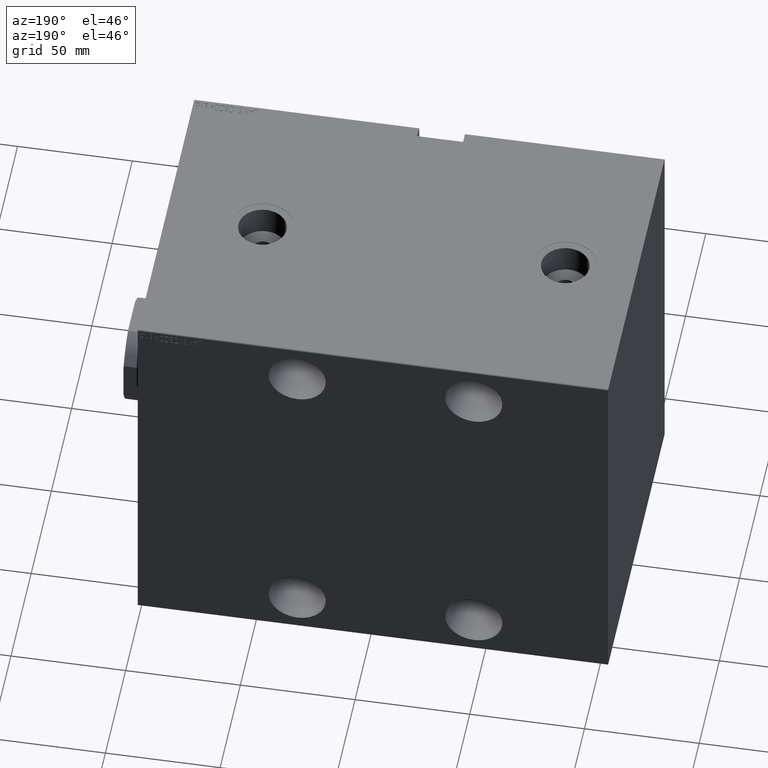
[diagram: clean part render]
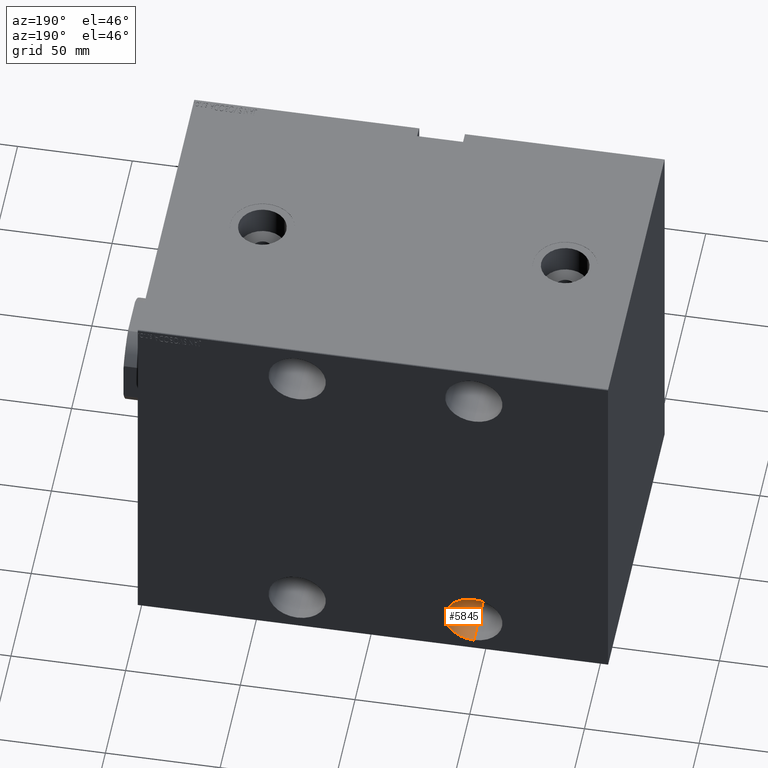
[diagram: same view with one face highlighted and labeled with its STEP entity id]
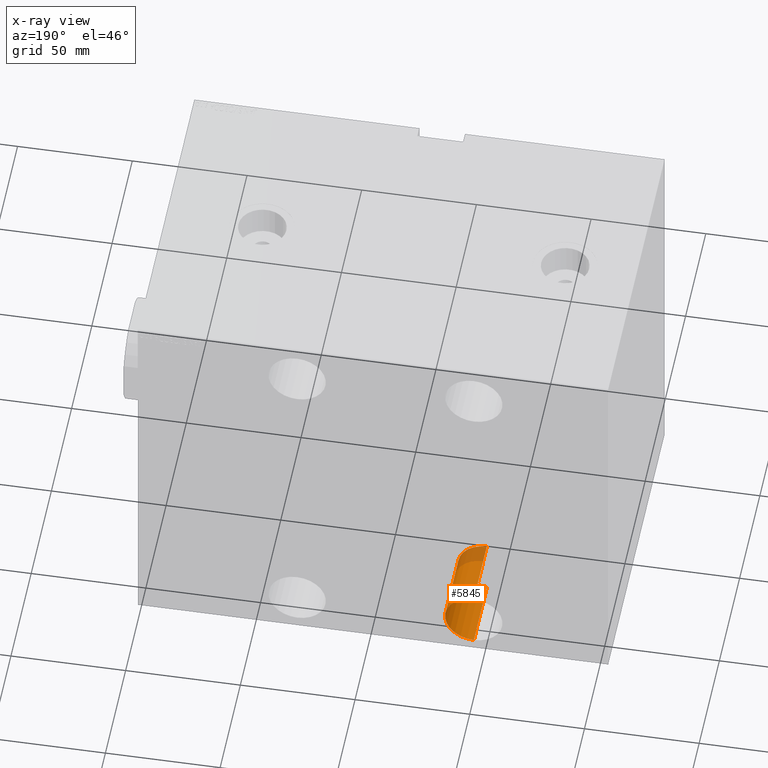
[diagram: x-ray of the same camera — body ghosted, the highlighted face saturated]
A machine part, auxiliary view. The second image highlights one B-rep face of the part: STEP entity #5845.
The next image is the same camera in x-ray: the body ghosted, the highlighted face saturated — about 20% of this face is hidden behind the body in this view.
In plain terms, the highlighted cylindrical surface (edge-blend (fillet) strip) has radius 12.5 mm, axis along (0, 1, -0).
Its self-contained STEP definition (entity closure, byte-faithful):
#503 = EDGE_CURVE ( 'NONE', #38958, #21281, #22963, .T. ) ;
#773 = CARTESIAN_POINT ( 'NONE',  ( 146.5000000000000284, -69.99999999999998579, -67.50000000000005684 ) ) ;
#1232 = CYLINDRICAL_SURFACE ( 'NONE', #12297, 12.50000000000001066 ) ;
#3494 = AXIS2_PLACEMENT_3D ( 'NONE', #6202, #27288, #33370 ) ;
#4210 = CIRCLE ( 'NONE', #3494, 12.50000000000001066 ) ;
#4815 = CARTESIAN_POINT ( 'NONE',  ( 146.5000000000000284, -37.99999999999999289, -67.50000000000005684 ) ) ;
#5845 = ADVANCED_FACE ( 'NONE', ( #11550 ), #1232, .F. ) ;
#6202 = CARTESIAN_POINT ( 'NONE',  ( 146.5000000000000284, -37.99999999999999289, -67.50000000000005684 ) ) ;
#8167 = DIRECTION ( 'NONE',  ( 0.000000000000000000, -1.000000000000000000, 0.000000000000000000 ) ) ;
#8294 = VECTOR ( 'NONE', #33725, 1000.000000000000000 ) ;
#9779 = CARTESIAN_POINT ( 'NONE',  ( 146.5000000000000284, -69.99999999999998579, -55.00000000000004974 ) ) ;
#10836 = CARTESIAN_POINT ( 'NONE',  ( 146.5000000000000284, -37.99999999999999289, -55.00000000000004974 ) ) ;
#11064 = EDGE_CURVE ( 'NONE', #39208, #38958, #42042, .T. ) ;
#11550 = FACE_OUTER_BOUND ( 'NONE', #30825, .T. ) ;
#12297 = AXIS2_PLACEMENT_3D ( 'NONE', #4815, #22314, #31766 ) ;
#13501 = CARTESIAN_POINT ( 'NONE',  ( 146.5000000000000284, -37.99999999999999289, -80.00000000000007105 ) ) ;
#13626 = AXIS2_PLACEMENT_3D ( 'NONE', #773, #8167, #21855 ) ;
#15725 = CARTESIAN_POINT ( 'NONE',  ( 146.5000000000000284, -69.99999999999998579, -80.00000000000007105 ) ) ;
#16128 = ORIENTED_EDGE ( 'NONE', *, *, #503, .T. ) ;
#18320 = CARTESIAN_POINT ( 'NONE',  ( 146.5000000000000284, -37.99999999999999289, -80.00000000000007105 ) ) ;
#20332 = VERTEX_POINT ( 'NONE', #18320 ) ;
#20842 = EDGE_CURVE ( 'NONE', #20332, #21281, #33937, .T. ) ;
#20935 = CARTESIAN_POINT ( 'NONE',  ( 146.5000000000000284, -37.99999999999999289, -55.00000000000005684 ) ) ;
#21281 = VERTEX_POINT ( 'NONE', #15725 ) ;
#21855 = DIRECTION ( 'NONE',  ( 0.000000000000000000, 0.000000000000000000, -1.000000000000000000 ) ) ;
#22314 = DIRECTION ( 'NONE',  ( -0.000000000000000000, -1.000000000000000000, -0.000000000000000000 ) ) ;
#22963 = CIRCLE ( 'NONE', #13626, 12.50000000000001066 ) ;
#24538 = DIRECTION ( 'NONE',  ( -0.000000000000000000, -1.000000000000000000, -0.000000000000000000 ) ) ;
#27288 = DIRECTION ( 'NONE',  ( 0.000000000000000000, -1.000000000000000000, 0.000000000000000000 ) ) ;
#29882 = ORIENTED_EDGE ( 'NONE', *, *, #20842, .F. ) ;
#30825 = EDGE_LOOP ( 'NONE', ( #38554, #40954, #16128, #29882 ) ) ;
#31766 = DIRECTION ( 'NONE',  ( 0.000000000000000000, 0.000000000000000000, -1.000000000000000000 ) ) ;
#33370 = DIRECTION ( 'NONE',  ( 0.000000000000000000, 0.000000000000000000, -1.000000000000000000 ) ) ;
#33725 = DIRECTION ( 'NONE',  ( -0.000000000000000000, -1.000000000000000000, -0.000000000000000000 ) ) ;
#33937 = LINE ( 'NONE', #13501, #8294 ) ;
#38554 = ORIENTED_EDGE ( 'NONE', *, *, #40369, .F. ) ;
#38958 = VERTEX_POINT ( 'NONE', #9779 ) ;
#38970 = VECTOR ( 'NONE', #24538, 1000.000000000000000 ) ;
#39208 = VERTEX_POINT ( 'NONE', #10836 ) ;
#40369 = EDGE_CURVE ( 'NONE', #39208, #20332, #4210, .T. ) ;
#40954 = ORIENTED_EDGE ( 'NONE', *, *, #11064, .T. ) ;
#42042 = LINE ( 'NONE', #20935, #38970 ) ;